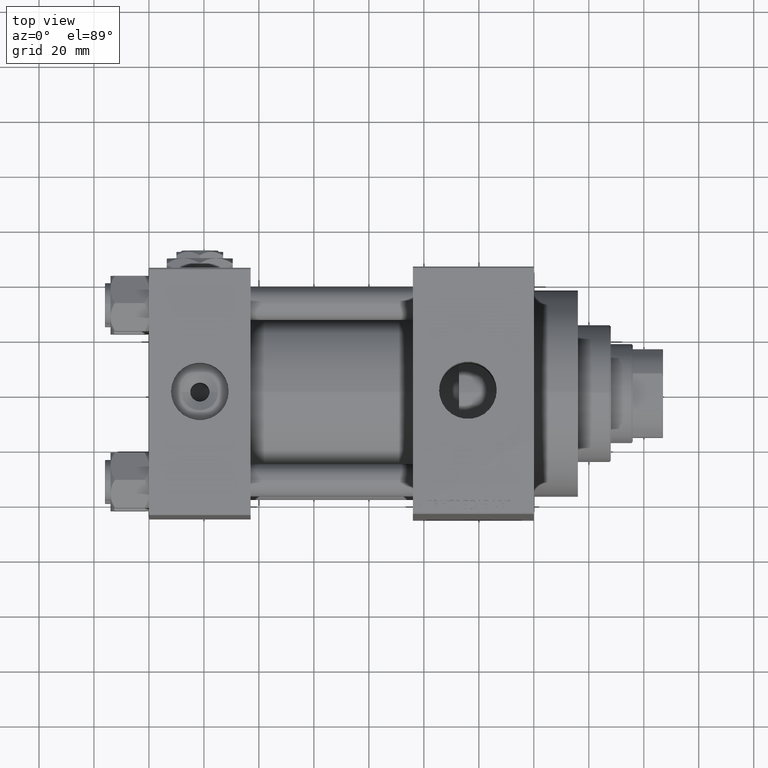
[diagram: clean part render]
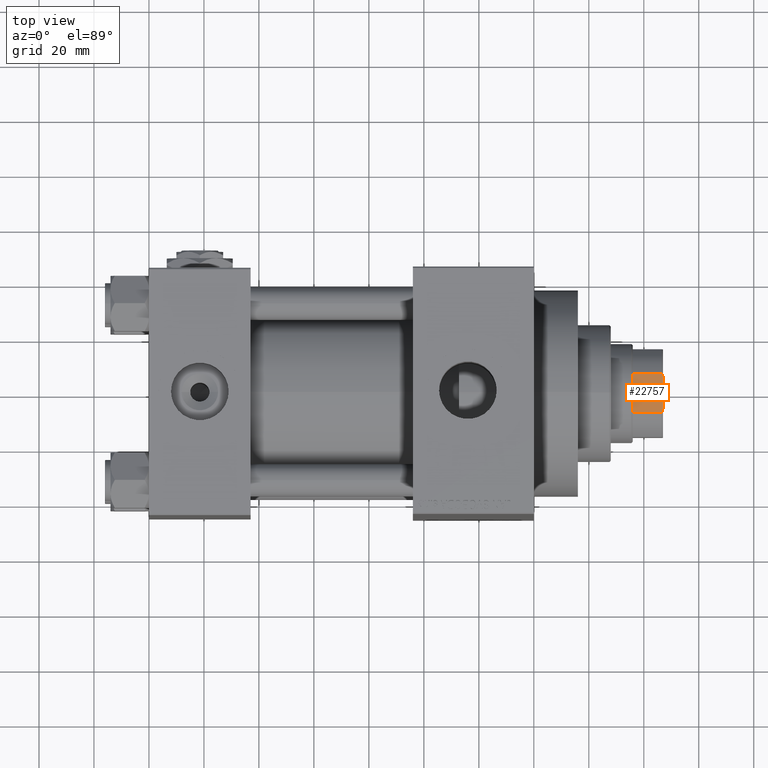
[diagram: same view with one face highlighted and labeled with its STEP entity id]
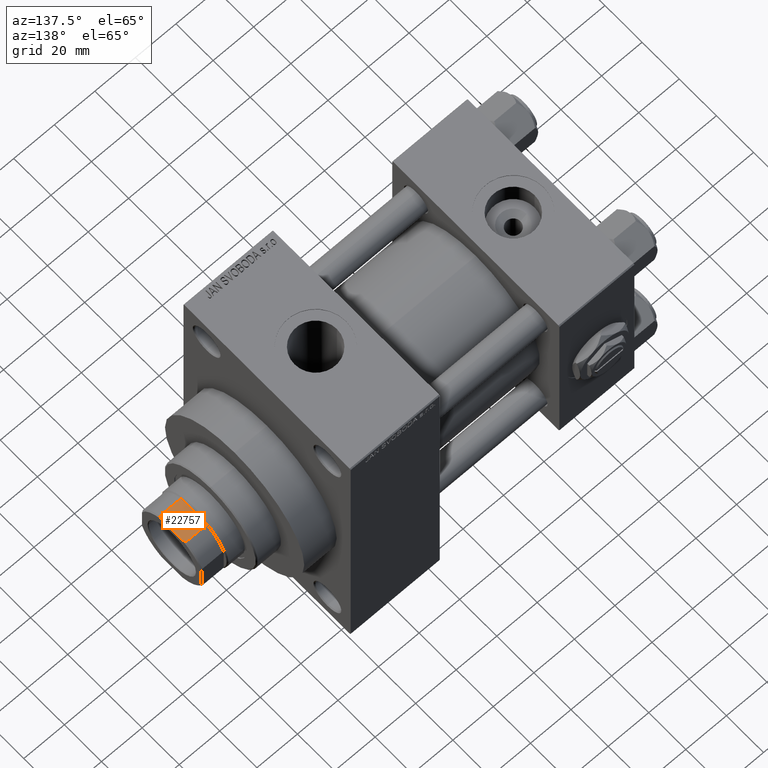
[diagram: same view with one face highlighted and labeled with its STEP entity id]
A machine part, top view. The second image highlights one B-rep face of the part: STEP entity #22757.
A second angle (auxiliary view) of the same face is appended — the face is thin or edge-on in the first view.
In plain terms, the highlighted planar face has unit normal (0, 0, -1).
Its self-contained STEP definition (entity closure, byte-faithful):
#1160 = CARTESIAN_POINT ( 'NONE',  ( -16.00000000000000000, -16.00000000000000000, 150.0000000000000284 ) ) ;
#2629 = FACE_OUTER_BOUND ( 'NONE', #27616, .T. ) ;
#3054 = ORIENTED_EDGE ( 'NONE', *, *, #37010, .T. ) ;
#4689 = CARTESIAN_POINT ( 'NONE',  ( -7.088723439378915359, -16.00000000000000000, -0.001000000000001000089 ) ) ;
#5321 = VERTEX_POINT ( 'NONE', #15241 ) ;
#6178 = VERTEX_POINT ( 'NONE', #28718 ) ;
#6861 = CARTESIAN_POINT ( 'NONE',  ( -16.00000000000000000, -16.00000000000000000, 139.0000000000000000 ) ) ;
#7206 = EDGE_CURVE ( 'NONE', #6178, #16828, #46323, .T. ) ;
#7343 = B_SPLINE_CURVE_WITH_KNOTS ( 'NONE', 3,
 ( #44529, #32410, #10387, #47507 ),
 .UNSPECIFIED., .F., .F.,
 ( 4, 4 ),
 ( 0.000000000000000000, 0.001434143729551137954 ),
 .UNSPECIFIED. ) ;
#8224 = VECTOR ( 'NONE', #22670, 1000.000000000000000 ) ;
#8612 = VERTEX_POINT ( 'NONE', #17736 ) ;
#10387 = CARTESIAN_POINT ( 'NONE',  ( 6.197659614356010316, -16.00000000000000000, 149.8468915343184449 ) ) ;
#12671 = DIRECTION ( 'NONE',  ( -0.000000000000000000, -0.000000000000000000, 1.000000000000000000 ) ) ;
#12686 = EDGE_CURVE ( 'NONE', #42664, #6178, #40766, .T. ) ;
#12878 = LINE ( 'NONE', #4689, #30845 ) ;
#13425 = CARTESIAN_POINT ( 'NONE',  ( -7.088723439378915359, -16.00000000000000000, 139.0000000000000000 ) ) ;
#15241 = CARTESIAN_POINT ( 'NONE',  ( -5.744562646537909600, -16.00000000000000000, 150.0000000000000284 ) ) ;
#15324 = CARTESIAN_POINT ( 'NONE',  ( -5.744562646537909600, -16.00000000000000000, 150.0000000000000284 ) ) ;
#16270 = DIRECTION ( 'NONE',  ( 1.000000000000000000, 0.000000000000000000, 0.000000000000000000 ) ) ;
#16828 = VERTEX_POINT ( 'NONE', #18791 ) ;
#17736 = CARTESIAN_POINT ( 'NONE',  ( -7.088723439378915359, -16.00000000000000000, 149.4999999999999716 ) ) ;
#18791 = CARTESIAN_POINT ( 'NONE',  ( 7.088723439378915359, -16.00000000000000000, 149.5000000000000000 ) ) ;
#19305 = ORIENTED_EDGE ( 'NONE', *, *, #12686, .T. ) ;
#20092 = CARTESIAN_POINT ( 'NONE',  ( 7.088723439378915359, -16.00000000000000000, -0.001000000000001000089 ) ) ;
#21214 = DIRECTION ( 'NONE',  ( 0.000000000000000000, 1.000000000000000000, 0.000000000000000000 ) ) ;
#22169 = DIRECTION ( 'NONE',  ( 0.000000000000000000, -0.000000000000000000, 1.000000000000000000 ) ) ;
#22670 = DIRECTION ( 'NONE',  ( 1.000000000000000000, 0.000000000000000000, 0.000000000000000000 ) ) ;
#22757 = ADVANCED_FACE ( 'NONE', ( #2629 ), #32592, .F. ) ;
#22981 = VERTEX_POINT ( 'NONE', #32297 ) ;
#23025 = ORIENTED_EDGE ( 'NONE', *, *, #26166, .F. ) ;
#23246 = CARTESIAN_POINT ( 'NONE',  ( -6.645462757301091372, -16.00000000000000000, 149.6795515649600077 ) ) ;
#26166 = EDGE_CURVE ( 'NONE', #5321, #22981, #35070, .T. ) ;
#27616 = EDGE_LOOP ( 'NONE', ( #48417, #46062, #23025, #3054, #29115, #19305 ) ) ;
#28718 = CARTESIAN_POINT ( 'NONE',  ( 7.088723439378915359, -16.00000000000000000, 139.0000000000000000 ) ) ;
#29115 = ORIENTED_EDGE ( 'NONE', *, *, #30655, .F. ) ;
#30655 = EDGE_CURVE ( 'NONE', #42664, #8612, #12878, .T. ) ;
#30845 = VECTOR ( 'NONE', #42577, 1000.000000000000000 ) ;
#30920 = CARTESIAN_POINT ( 'NONE',  ( -7.088723439378915359, -16.00000000000000000, 149.4999999999999716 ) ) ;
#32297 = CARTESIAN_POINT ( 'NONE',  ( 5.744562646537962003, -16.00000000000000000, 150.0000000000000284 ) ) ;
#32410 = CARTESIAN_POINT ( 'NONE',  ( 6.645462757301098478, -16.00000000000000000, 149.6795515649599793 ) ) ;
#32592 = PLANE ( 'NONE',  #33742 ) ;
#33742 = AXIS2_PLACEMENT_3D ( 'NONE', #44934, #21214, #22169 ) ;
#35070 = LINE ( 'NONE', #1160, #42694 ) ;
#36479 = VECTOR ( 'NONE', #12671, 1000.000000000000000 ) ;
#37010 = EDGE_CURVE ( 'NONE', #5321, #8612, #43853, .T. ) ;
#39080 = CARTESIAN_POINT ( 'NONE',  ( -6.197659614355979230, -16.00000000000000000, 149.8468915343184165 ) ) ;
#40766 = LINE ( 'NONE', #6861, #8224 ) ;
#42577 = DIRECTION ( 'NONE',  ( -0.000000000000000000, -0.000000000000000000, 1.000000000000000000 ) ) ;
#42664 = VERTEX_POINT ( 'NONE', #13425 ) ;
#42694 = VECTOR ( 'NONE', #16270, 1000.000000000000000 ) ;
#43728 = EDGE_CURVE ( 'NONE', #16828, #22981, #7343, .T. ) ;
#43853 = B_SPLINE_CURVE_WITH_KNOTS ( 'NONE', 3,
 ( #15324, #39080, #23246, #30920 ),
 .UNSPECIFIED., .F., .F.,
 ( 4, 4 ),
 ( 0.000000000000000000, 0.001434143729551196718 ),
 .UNSPECIFIED. ) ;
#44529 = CARTESIAN_POINT ( 'NONE',  ( 7.088723439378915359, -16.00000000000000000, 149.5000000000000000 ) ) ;
#44934 = CARTESIAN_POINT ( 'NONE',  ( -16.00000000000000000, -16.00000000000000000, 150.0000000000000284 ) ) ;
#46062 = ORIENTED_EDGE ( 'NONE', *, *, #43728, .T. ) ;
#46323 = LINE ( 'NONE', #20092, #36479 ) ;
#47507 = CARTESIAN_POINT ( 'NONE',  ( 5.744562646537962003, -16.00000000000000000, 150.0000000000000284 ) ) ;
#48417 = ORIENTED_EDGE ( 'NONE', *, *, #7206, .T. ) ;